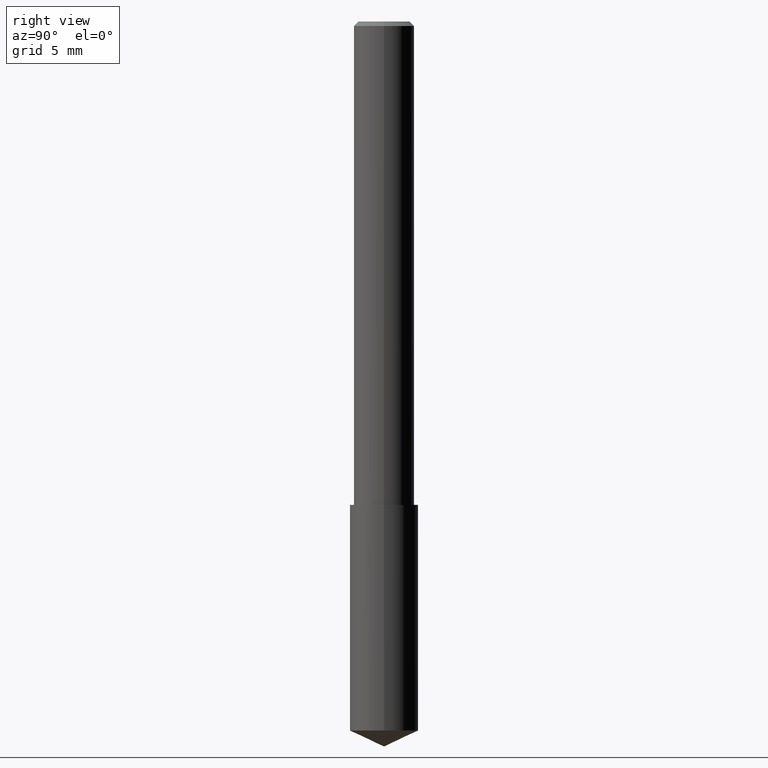
[diagram: clean part render]
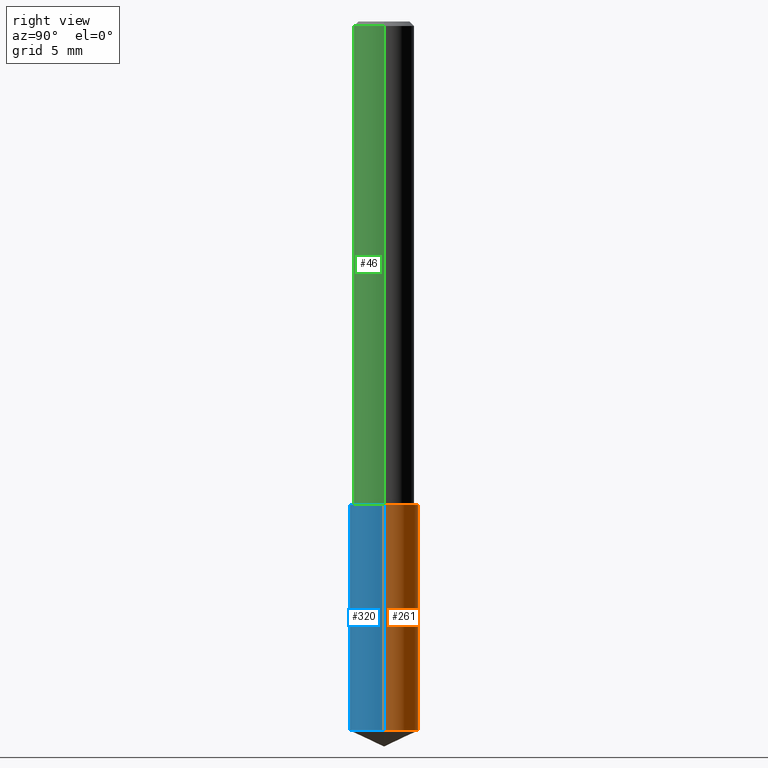
[diagram: same view with three faces highlighted in distinct colors, each labeled with its STEP entity id]
A machine part, right view with three faces highlighted in distinct colors.
Their STEP definitions:

[orange] entity #261 — the highlighted cylindrical surface (edge-blend (fillet) strip) has radius 1.7996 mm, axis along (-0, 0, 1).
#1 = CIRCLE ( 'NONE', #188, 0.07084999999999999631 ) ;
#6 = LINE ( 'NONE', #111, #233 ) ;
#33 = DIRECTION ( 'NONE',  ( 1.000000000000000000, -6.982962677686263555E-15, 0.000000000000000000 ) ) ;
#35 = CARTESIAN_POINT ( 'NONE',  ( 3.587410061323187076E-29, -5.121870805388554616E-15, -1.466962102419718583 ) ) ;
#37 = CIRCLE ( 'NONE', #220, 0.07084999999999999631 ) ;
#49 = CARTESIAN_POINT ( 'NONE',  ( 0.07084999999999999631, -3.986224244557217443E-15, -1.000000000000000222 ) ) ;
#50 = AXIS2_PLACEMENT_3D ( 'NONE', #137, #219, #33 ) ;
#54 = EDGE_LOOP ( 'NONE', ( #255, #229, #273, #154 ) ) ;
#55 = CARTESIAN_POINT ( 'NONE',  ( 2.445468806185136877E-29, -3.491481338843145977E-15, -1.000000000000000222 ) ) ;
#73 = VERTEX_POINT ( 'NONE', #284 ) ;
#74 = VERTEX_POINT ( 'NONE', #280 ) ;
#94 = VERTEX_POINT ( 'NONE', #49 ) ;
#102 = DIRECTION ( 'NONE',  ( -2.445468806185136597E-29, 3.491481338843145583E-15, 1.000000000000000000 ) ) ;
#111 = CARTESIAN_POINT ( 'NONE',  ( 0.07084999999999999631, -3.986224244557218232E-15, -1.000000000000000222 ) ) ;
#112 = CYLINDRICAL_SURFACE ( 'NONE', #50, 0.07084999999999999631 ) ;
#115 = FACE_OUTER_BOUND ( 'NONE', #54, .T. ) ;
#124 = CARTESIAN_POINT ( 'NONE',  ( -0.07084999999999999631, -3.803256543829818749E-15, -1.000000000000000222 ) ) ;
#130 = VERTEX_POINT ( 'NONE', #124 ) ;
#137 = CARTESIAN_POINT ( 'NONE',  ( 2.445468806185137438E-29, -3.491481338843146371E-15, -1.000000000000000222 ) ) ;
#141 = DIRECTION ( 'NONE',  ( -2.445468806185136877E-29, 3.491481338843145188E-15, 1.000000000000000000 ) ) ;
#145 = EDGE_CURVE ( 'NONE', #94, #130, #37, .T. ) ;
#154 = ORIENTED_EDGE ( 'NONE', *, *, #276, .F. ) ;
#158 = DIRECTION ( 'NONE',  ( 1.000000000000000000, -6.982962677686263555E-15, 0.000000000000000000 ) ) ;
#161 = DIRECTION ( 'NONE',  ( -2.445468806185136597E-29, 3.491481338843145583E-15, 1.000000000000000000 ) ) ;
#165 = LINE ( 'NONE', #269, #305 ) ;
#168 = EDGE_CURVE ( 'NONE', #74, #130, #165, .T. ) ;
#188 = AXIS2_PLACEMENT_3D ( 'NONE', #35, #161, #217 ) ;
#217 = DIRECTION ( 'NONE',  ( 1.000000000000000000, -6.982962677686263555E-15, 0.000000000000000000 ) ) ;
#219 = DIRECTION ( 'NONE',  ( -2.445468806185136597E-29, 3.491481338843145583E-15, 1.000000000000000000 ) ) ;
#220 = AXIS2_PLACEMENT_3D ( 'NONE', #55, #102, #158 ) ;
#229 = ORIENTED_EDGE ( 'NONE', *, *, #168, .T. ) ;
#233 = VECTOR ( 'NONE', #324, 39.37007874015748143 ) ;
#255 = ORIENTED_EDGE ( 'NONE', *, *, #272, .T. ) ;
#261 = ADVANCED_FACE ( 'NONE', ( #115 ), #112, .T. ) ;
#269 = CARTESIAN_POINT ( 'NONE',  ( -0.07084999999999999631, -2.988061810557115613E-15, -1.000000000000000222 ) ) ;
#272 = EDGE_CURVE ( 'NONE', #73, #74, #1, .T. ) ;
#273 = ORIENTED_EDGE ( 'NONE', *, *, #145, .F. ) ;
#276 = EDGE_CURVE ( 'NONE', #73, #94, #6, .T. ) ;
#280 = CARTESIAN_POINT ( 'NONE',  ( -0.07084999999999998244, -4.618451277102523068E-15, -1.466962102419718583 ) ) ;
#284 = CARTESIAN_POINT ( 'NONE',  ( 0.07084999999999998244, -5.616613711102626082E-15, -1.466962102419718583 ) ) ;
#305 = VECTOR ( 'NONE', #141, 39.37007874015748143 ) ;
#324 = DIRECTION ( 'NONE',  ( -2.445468806185136877E-29, 3.491481338843145188E-15, 1.000000000000000000 ) ) ;

[blue] entity #320 — the highlighted cylindrical surface (edge-blend (fillet) strip) has radius 1.7996 mm, axis along (-0, 0, 1).
#6 = LINE ( 'NONE', #111, #233 ) ;
#49 = CARTESIAN_POINT ( 'NONE',  ( 0.07084999999999999631, -3.986224244557217443E-15, -1.000000000000000222 ) ) ;
#53 = ORIENTED_EDGE ( 'NONE', *, *, #157, .F. ) ;
#57 = EDGE_CURVE ( 'NONE', #74, #73, #326, .T. ) ;
#58 = AXIS2_PLACEMENT_3D ( 'NONE', #298, #139, #62 ) ;
#62 = DIRECTION ( 'NONE',  ( 1.000000000000000000, -6.982962677686263555E-15, 0.000000000000000000 ) ) ;
#73 = VERTEX_POINT ( 'NONE', #284 ) ;
#74 = VERTEX_POINT ( 'NONE', #280 ) ;
#78 = EDGE_LOOP ( 'NONE', ( #287, #333, #256, #53 ) ) ;
#94 = VERTEX_POINT ( 'NONE', #49 ) ;
#111 = CARTESIAN_POINT ( 'NONE',  ( 0.07084999999999999631, -3.986224244557218232E-15, -1.000000000000000222 ) ) ;
#114 = DIRECTION ( 'NONE',  ( 1.000000000000000000, -6.982962677686263555E-15, 0.000000000000000000 ) ) ;
#116 = AXIS2_PLACEMENT_3D ( 'NONE', #156, #200, #286 ) ;
#124 = CARTESIAN_POINT ( 'NONE',  ( -0.07084999999999999631, -3.803256543829818749E-15, -1.000000000000000222 ) ) ;
#130 = VERTEX_POINT ( 'NONE', #124 ) ;
#139 = DIRECTION ( 'NONE',  ( -2.445468806185136597E-29, 3.491481338843145583E-15, 1.000000000000000000 ) ) ;
#141 = DIRECTION ( 'NONE',  ( -2.445468806185136877E-29, 3.491481338843145188E-15, 1.000000000000000000 ) ) ;
#156 = CARTESIAN_POINT ( 'NONE',  ( 3.587410061323187076E-29, -5.121870805388554616E-15, -1.466962102419718583 ) ) ;
#157 = EDGE_CURVE ( 'NONE', #130, #94, #312, .T. ) ;
#165 = LINE ( 'NONE', #269, #305 ) ;
#168 = EDGE_CURVE ( 'NONE', #74, #130, #165, .T. ) ;
#185 = DIRECTION ( 'NONE',  ( -2.445468806185136597E-29, 3.491481338843145583E-15, 1.000000000000000000 ) ) ;
#200 = DIRECTION ( 'NONE',  ( -2.445468806185136597E-29, 3.491481338843145583E-15, 1.000000000000000000 ) ) ;
#216 = FACE_OUTER_BOUND ( 'NONE', #78, .T. ) ;
#233 = VECTOR ( 'NONE', #324, 39.37007874015748143 ) ;
#238 = CYLINDRICAL_SURFACE ( 'NONE', #270, 0.07084999999999999631 ) ;
#256 = ORIENTED_EDGE ( 'NONE', *, *, #276, .T. ) ;
#269 = CARTESIAN_POINT ( 'NONE',  ( -0.07084999999999999631, -2.988061810557115613E-15, -1.000000000000000222 ) ) ;
#270 = AXIS2_PLACEMENT_3D ( 'NONE', #318, #185, #114 ) ;
#276 = EDGE_CURVE ( 'NONE', #73, #94, #6, .T. ) ;
#280 = CARTESIAN_POINT ( 'NONE',  ( -0.07084999999999998244, -4.618451277102523068E-15, -1.466962102419718583 ) ) ;
#284 = CARTESIAN_POINT ( 'NONE',  ( 0.07084999999999998244, -5.616613711102626082E-15, -1.466962102419718583 ) ) ;
#286 = DIRECTION ( 'NONE',  ( 1.000000000000000000, -6.982962677686263555E-15, 0.000000000000000000 ) ) ;
#287 = ORIENTED_EDGE ( 'NONE', *, *, #168, .F. ) ;
#298 = CARTESIAN_POINT ( 'NONE',  ( 2.445468806185136877E-29, -3.491481338843145977E-15, -1.000000000000000222 ) ) ;
#305 = VECTOR ( 'NONE', #141, 39.37007874015748143 ) ;
#312 = CIRCLE ( 'NONE', #58, 0.07084999999999999631 ) ;
#318 = CARTESIAN_POINT ( 'NONE',  ( 2.445468806185137438E-29, -3.491481338843146371E-15, -1.000000000000000222 ) ) ;
#320 = ADVANCED_FACE ( 'NONE', ( #216 ), #238, .T. ) ;
#324 = DIRECTION ( 'NONE',  ( -2.445468806185136877E-29, 3.491481338843145188E-15, 1.000000000000000000 ) ) ;
#326 = CIRCLE ( 'NONE', #116, 0.07084999999999999631 ) ;
#333 = ORIENTED_EDGE ( 'NONE', *, *, #57, .T. ) ;

[green] entity #46 — the highlighted cylindrical surface (edge-blend (fillet) strip) has radius 1.5875 mm, axis along (-0, 0, 1).
#2 = CARTESIAN_POINT ( 'NONE',  ( -0.06250000000000012490, -1.318017778347335489E-15, -1.000000000000000222 ) ) ;
#16 = LINE ( 'NONE', #20, #108 ) ;
#20 = CARTESIAN_POINT ( 'NONE',  ( 0.06250000000000006939, -4.364351673553921624E-16, 3.047610484872463374E-30 ) ) ;
#26 = EDGE_LOOP ( 'NONE', ( #125, #339, #29, #107 ) ) ;
#29 = ORIENTED_EDGE ( 'NONE', *, *, #87, .T. ) ;
#42 = AXIS2_PLACEMENT_3D ( 'NONE', #230, #174, #226 ) ;
#46 = ADVANCED_FACE ( 'NONE', ( #127 ), #179, .T. ) ;
#68 = EDGE_CURVE ( 'NONE', #197, #291, #259, .T. ) ;
#70 = DIRECTION ( 'NONE',  ( -2.445468806185136597E-29, 3.491481338843145583E-15, 1.000000000000000000 ) ) ;
#77 = LINE ( 'NONE', #202, #244 ) ;
#81 = DIRECTION ( 'NONE',  ( -2.445468806185136877E-29, 3.491481338843145188E-15, 1.000000000000000000 ) ) ;
#87 = EDGE_CURVE ( 'NONE', #291, #227, #16, .T. ) ;
#89 = CARTESIAN_POINT ( 'NONE',  ( 2.292627005798580623E-31, -3.273263755165470801E-17, -0.009375000000000062103 ) ) ;
#103 = DIRECTION ( 'NONE',  ( 1.000000000000000000, -6.982962677686266711E-15, 4.876176775795935793E-29 ) ) ;
#104 = AXIS2_PLACEMENT_3D ( 'NONE', #249, #70, #103 ) ;
#107 = ORIENTED_EDGE ( 'NONE', *, *, #191, .F. ) ;
#108 = VECTOR ( 'NONE', #310, 39.37007874015748143 ) ;
#109 = EDGE_CURVE ( 'NONE', #197, #332, #77, .T. ) ;
#125 = ORIENTED_EDGE ( 'NONE', *, *, #109, .F. ) ;
#127 = FACE_OUTER_BOUND ( 'NONE', #26, .T. ) ;
#159 = CIRCLE ( 'NONE', #166, 0.06250000000000000000 ) ;
#166 = AXIS2_PLACEMENT_3D ( 'NONE', #89, #186, #296 ) ;
#174 = DIRECTION ( 'NONE',  ( -2.445468806185136597E-29, 3.491481338843145583E-15, 1.000000000000000000 ) ) ;
#179 = CYLINDRICAL_SURFACE ( 'NONE', #104, 0.06250000000000006939 ) ;
#184 = CARTESIAN_POINT ( 'NONE',  ( 0.06250000000000012490, -3.927916506198539224E-15, -1.000000000000000222 ) ) ;
#186 = DIRECTION ( 'NONE',  ( -2.445468806185136597E-29, 3.491481338843145583E-15, 1.000000000000000000 ) ) ;
#191 = EDGE_CURVE ( 'NONE', #332, #227, #159, .T. ) ;
#197 = VERTEX_POINT ( 'NONE', #2 ) ;
#202 = CARTESIAN_POINT ( 'NONE',  ( -0.06250000000000006939, 4.440892098500631092E-16, -3.074334431409319267E-30 ) ) ;
#226 = DIRECTION ( 'NONE',  ( 1.000000000000000000, -6.982962677686264344E-15, 0.000000000000000000 ) ) ;
#227 = VERTEX_POINT ( 'NONE', #300 ) ;
#230 = CARTESIAN_POINT ( 'NONE',  ( 2.445468806185137438E-29, -3.491481338843146371E-15, -1.000000000000000222 ) ) ;
#244 = VECTOR ( 'NONE', #81, 39.37007874015748143 ) ;
#249 = CARTESIAN_POINT ( 'NONE',  ( 0.000000000000000000, 0.000000000000000000, 0.000000000000000000 ) ) ;
#259 = CIRCLE ( 'NONE', #42, 0.06250000000000012490 ) ;
#291 = VERTEX_POINT ( 'NONE', #184 ) ;
#295 = CARTESIAN_POINT ( 'NONE',  ( -0.06250000000000000000, -1.318017778347336672E-15, -0.009375000000000062103 ) ) ;
#296 = DIRECTION ( 'NONE',  ( 1.000000000000000000, -6.982962677686266711E-15, 0.000000000000000000 ) ) ;
#300 = CARTESIAN_POINT ( 'NONE',  ( 0.06250000000000000000, -4.691678049070463404E-16, -0.009375000000000062103 ) ) ;
#310 = DIRECTION ( 'NONE',  ( -2.445468806185136877E-29, 3.491481338843145188E-15, 1.000000000000000000 ) ) ;
#332 = VERTEX_POINT ( 'NONE', #295 ) ;
#339 = ORIENTED_EDGE ( 'NONE', *, *, #68, .T. ) ;